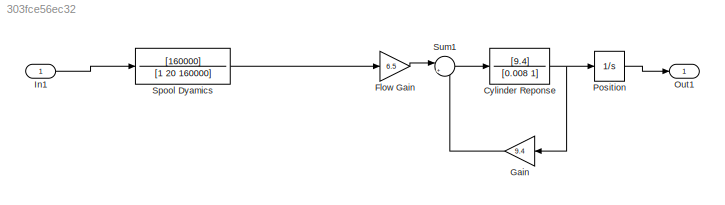
MODEL slx_303fce56ec32
KIND model
BLOCK [TransferFcn] Cylinder Reponse
  Denominator = [0.008  1]
  Numerator = [9.4]
BLOCK [Gain] Flow Gain
  Gain = 6.5
  OutDataTypeStr = Inherit: Inherit via internal rule
  ParamDataTypeStr = Inherit: Inherit via internal rule
  SaturateOnIntegerOverflow = off
BLOCK [Gain] Gain
  Gain = 9.4
  OutDataTypeStr = Inherit: Inherit via internal rule
  ParamDataTypeStr = Inherit: Inherit via internal rule
  SaturateOnIntegerOverflow = off
BLOCK [Inport] In1
  IconDisplay = Port number
BLOCK [Outport] Out1
  IconDisplay = Port number
BLOCK [Integrator] Position
  Ports = [1, 1]
BLOCK [TransferFcn] Spool Dyamics
  Denominator = [1 20 160000]
  Numerator = [160000]
BLOCK [Sum] Sum1
  IconShape = round
  InputSameDT = off
  Inputs = |+-
  OutDataTypeStr = Inherit: Inherit via internal rule
  Ports = [2, 1]
  SaturateOnIntegerOverflow = off
NET Cylinder Reponse:1 -> Gain:1, Position:1
LINE Flow Gain:1 -> Sum1:1
LINE Gain:1 -> Sum1:2
LINE In1:1 -> Spool Dyamics:1
LINE Position:1 -> Out1:1
LINE Spool Dyamics:1 -> Flow Gain:1
LINE Sum1:1 -> Cylinder Reponse:1
note: NET lines group one-source signal fan-out (src -> all destinations, sorted); 1:1 wires keep LINE
